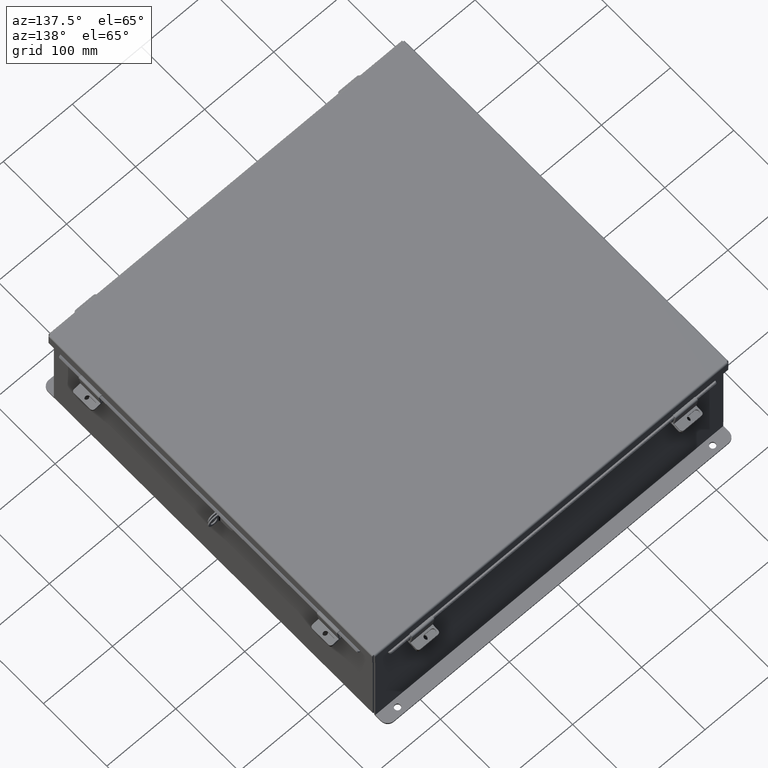
[diagram: clean part render]
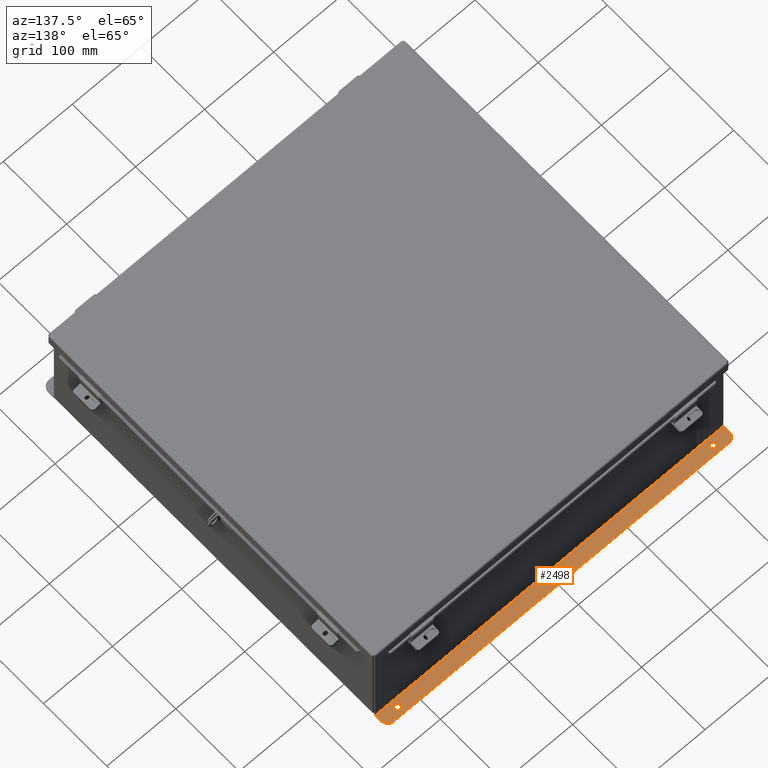
[diagram: same view with one face highlighted and labeled with its STEP entity id]
A machine part, auxiliary view. The second image highlights one B-rep face of the part: STEP entity #2498.
In plain terms, the highlighted planar face has unit normal (0, 0, 1).
Its self-contained STEP definition (entity closure, byte-faithful):
#204 = CARTESIAN_POINT ( 'NONE',  ( -9.925299999999996500, 0.01300000000000010700, -3.112299999999999800 ) ) ;
#269 = EDGE_CURVE ( 'NONE', #2657, #15982, #9549, .T. ) ;
#323 = VECTOR ( 'NONE', #8133, 39.37007874015748100 ) ;
#348 = CARTESIAN_POINT ( 'NONE',  ( 9.550300000000001800, 0.7378000000000011200, -3.112300000000003000 ) ) ;
#474 = CIRCLE ( 'NONE', #19232, 0.3750000000000000600 ) ;
#612 = CIRCLE ( 'NONE', #15362, 0.1560000000000001700 ) ;
#615 = ORIENTED_EDGE ( 'NONE', *, *, #20021, .F. ) ;
#617 = CARTESIAN_POINT ( 'NONE',  ( 9.550300000000001800, 0.3628000000000008400, -3.112300000000001200 ) ) ;
#642 = DIRECTION ( 'NONE',  ( 0.0000000000000000000, -1.000000000000000000, 3.502369222646487400E-015 ) ) ;
#669 = VERTEX_POINT ( 'NONE', #204 ) ;
#719 = DIRECTION ( 'NONE',  ( -0.0000000000000000000, 1.000000000000000000, -3.702694488566362300E-015 ) ) ;
#962 = DIRECTION ( 'NONE',  ( -0.0000000000000000000, -3.702694488566362300E-015, -1.000000000000000000 ) ) ;
#1343 = EDGE_LOOP ( 'NONE', ( #9283, #7933, #615, #2028, #11924, #3352 ) ) ;
#1504 = CARTESIAN_POINT ( 'NONE',  ( 9.925300000000001800, 0.01300000000000010700, -3.112299999999999800 ) ) ;
#2028 = ORIENTED_EDGE ( 'NONE', *, *, #20942, .T. ) ;
#2074 = VERTEX_POINT ( 'NONE', #7505 ) ;
#2290 = DIRECTION ( 'NONE',  ( 0.0000000000000000000, -1.000000000000000000, 4.370956789862820400E-015 ) ) ;
#2498 = ADVANCED_FACE ( 'NONE', ( #6497, #5960, #16395 ), #12637, .T. ) ;
#2657 = VERTEX_POINT ( 'NONE', #20598 ) ;
#3352 = ORIENTED_EDGE ( 'NONE', *, *, #17083, .F. ) ;
#3409 = VERTEX_POINT ( 'NONE', #5546 ) ;
#4676 = DIRECTION ( 'NONE',  ( -0.0000000000000000000, -3.702694488566362300E-015, -1.000000000000000000 ) ) ;
#4788 = EDGE_CURVE ( 'NONE', #2074, #11389, #612, .T. ) ;
#5519 = LINE ( 'NONE', #12535, #14793 ) ;
#5546 = CARTESIAN_POINT ( 'NONE',  ( -9.925299999999998200, 0.3628000000000008400, -3.112300000000001200 ) ) ;
#5960 = FACE_BOUND ( 'NONE', #7750, .T. ) ;
#6154 = CIRCLE ( 'NONE', #19013, 0.3750000000000000600 ) ;
#6497 = FACE_BOUND ( 'NONE', #10703, .T. ) ;
#6543 = EDGE_CURVE ( 'NONE', #11389, #2074, #15813, .T. ) ;
#6938 = AXIS2_PLACEMENT_3D ( 'NONE', #20576, #19251, #12392 ) ;
#6949 = CARTESIAN_POINT ( 'NONE',  ( 9.925300000000001800, 0.7378000000000011200, -3.112300000000003000 ) ) ;
#7505 = CARTESIAN_POINT ( 'NONE',  ( -8.987799999999994700, 0.5188000000000010400, -3.112300000000001600 ) ) ;
#7750 = EDGE_LOOP ( 'NONE', ( #22327, #10845 ) ) ;
#7933 = ORIENTED_EDGE ( 'NONE', *, *, #20770, .T. ) ;
#8070 = VECTOR ( 'NONE', #19335, 39.37007874015748100 ) ;
#8133 = DIRECTION ( 'NONE',  ( -1.000000000000000000, 0.0000000000000000000, 0.0000000000000000000 ) ) ;
#8592 = DIRECTION ( 'NONE',  ( -0.0000000000000000000, -3.702694488566362300E-015, -1.000000000000000000 ) ) ;
#8642 = DIRECTION ( 'NONE',  ( 0.0000000000000000000, -1.000000000000000000, 3.502369222646487400E-015 ) ) ;
#9283 = ORIENTED_EDGE ( 'NONE', *, *, #16537, .F. ) ;
#9334 = CARTESIAN_POINT ( 'NONE',  ( -9.550299999999998200, 0.3628000000000008400, -3.112300000000001200 ) ) ;
#9549 = CIRCLE ( 'NONE', #12704, 0.1560000000000001700 ) ;
#10348 = AXIS2_PLACEMENT_3D ( 'NONE', #21869, #4676, #20503 ) ;
#10703 = EDGE_LOOP ( 'NONE', ( #19297, #20689 ) ) ;
#10711 = VERTEX_POINT ( 'NONE', #1504 ) ;
#10720 = AXIS2_PLACEMENT_3D ( 'NONE', #11006, #962, #12804 ) ;
#10845 = ORIENTED_EDGE ( 'NONE', *, *, #269, .T. ) ;
#10931 = CARTESIAN_POINT ( 'NONE',  ( -8.987799999999994700, 0.3628000000000008400, -3.112300000000001200 ) ) ;
#11006 = CARTESIAN_POINT ( 'NONE',  ( 8.987800000000001800, 0.3628000000000008400, -3.112300000000001200 ) ) ;
#11066 = CARTESIAN_POINT ( 'NONE',  ( -8.987799999999994700, 0.2068000000000006800, -3.112300000000000700 ) ) ;
#11084 = DIRECTION ( 'NONE',  ( 0.0000000000000000000, -1.000000000000000000, 4.370956789862820400E-015 ) ) ;
#11389 = VERTEX_POINT ( 'NONE', #11066 ) ;
#11924 = ORIENTED_EDGE ( 'NONE', *, *, #16211, .F. ) ;
#12392 = DIRECTION ( 'NONE',  ( 0.0000000000000000000, -1.000000000000000000, 3.702694488566362300E-015 ) ) ;
#12427 = DIRECTION ( 'NONE',  ( 0.0000000000000000000, 3.702694488566362300E-015, 1.000000000000000000 ) ) ;
#12535 = CARTESIAN_POINT ( 'NONE',  ( -9.925299999999998200, 0.7378000000000011200, -3.112300000000003000 ) ) ;
#12637 = PLANE ( 'NONE',  #6938 ) ;
#12674 = LINE ( 'NONE', #6949, #8070 ) ;
#12704 = AXIS2_PLACEMENT_3D ( 'NONE', #15624, #8592, #8642 ) ;
#12780 = LINE ( 'NONE', #20657, #21715 ) ;
#12804 = DIRECTION ( 'NONE',  ( 0.0000000000000000000, -1.000000000000000000, 3.502369222646487400E-015 ) ) ;
#13201 = CARTESIAN_POINT ( 'NONE',  ( -9.550299999999998200, 0.7378000000000011200, -3.112300000000003000 ) ) ;
#13868 = CARTESIAN_POINT ( 'NONE',  ( 9.925300000000001800, 0.3628000000000008400, -3.112300000000001200 ) ) ;
#13935 = LINE ( 'NONE', #20433, #323 ) ;
#14793 = VECTOR ( 'NONE', #719, 39.37007874015748100 ) ;
#15362 = AXIS2_PLACEMENT_3D ( 'NONE', #10931, #19237, #642 ) ;
#15624 = CARTESIAN_POINT ( 'NONE',  ( 8.987800000000001800, 0.3628000000000008400, -3.112300000000001200 ) ) ;
#15813 = CIRCLE ( 'NONE', #10348, 0.1560000000000001700 ) ;
#15875 = CIRCLE ( 'NONE', #10720, 0.1560000000000001700 ) ;
#15982 = VERTEX_POINT ( 'NONE', #20768 ) ;
#16075 = VERTEX_POINT ( 'NONE', #348 ) ;
#16211 = EDGE_CURVE ( 'NONE', #669, #3409, #5519, .T. ) ;
#16395 = FACE_OUTER_BOUND ( 'NONE', #1343, .T. ) ;
#16537 = EDGE_CURVE ( 'NONE', #19340, #10711, #12780, .T. ) ;
#17083 = EDGE_CURVE ( 'NONE', #10711, #669, #13935, .T. ) ;
#17941 = EDGE_CURVE ( 'NONE', #15982, #2657, #15875, .T. ) ;
#18133 = VERTEX_POINT ( 'NONE', #13201 ) ;
#19013 = AXIS2_PLACEMENT_3D ( 'NONE', #9334, #21769, #11084 ) ;
#19232 = AXIS2_PLACEMENT_3D ( 'NONE', #617, #12427, #2290 ) ;
#19237 = DIRECTION ( 'NONE',  ( -0.0000000000000000000, -3.702694488566362300E-015, -1.000000000000000000 ) ) ;
#19251 = DIRECTION ( 'NONE',  ( 0.0000000000000000000, 3.702694488566362300E-015, 1.000000000000000000 ) ) ;
#19297 = ORIENTED_EDGE ( 'NONE', *, *, #4788, .T. ) ;
#19335 = DIRECTION ( 'NONE',  ( 1.000000000000000000, -0.0000000000000000000, -0.0000000000000000000 ) ) ;
#19340 = VERTEX_POINT ( 'NONE', #13868 ) ;
#20021 = EDGE_CURVE ( 'NONE', #18133, #16075, #12674, .T. ) ;
#20433 = CARTESIAN_POINT ( 'NONE',  ( 9.925300000000001800, 0.01300000000000010700, -3.112299999999999800 ) ) ;
#20503 = DIRECTION ( 'NONE',  ( 0.0000000000000000000, -1.000000000000000000, 3.502369222646487400E-015 ) ) ;
#20576 = CARTESIAN_POINT ( 'NONE',  ( 0.0000000000000000000, -1.092739197465705300E-014, -3.112299999999999800 ) ) ;
#20598 = CARTESIAN_POINT ( 'NONE',  ( 8.987800000000001800, 0.2068000000000006800, -3.112300000000000700 ) ) ;
#20657 = CARTESIAN_POINT ( 'NONE',  ( 9.925300000000001800, 0.0000000000000000000, -3.112299999999999800 ) ) ;
#20689 = ORIENTED_EDGE ( 'NONE', *, *, #6543, .T. ) ;
#20768 = CARTESIAN_POINT ( 'NONE',  ( 8.987800000000001800, 0.5188000000000010400, -3.112300000000001600 ) ) ;
#20770 = EDGE_CURVE ( 'NONE', #19340, #16075, #474, .T. ) ;
#20942 = EDGE_CURVE ( 'NONE', #18133, #3409, #6154, .T. ) ;
#21715 = VECTOR ( 'NONE', #22434, 39.37007874015748100 ) ;
#21769 = DIRECTION ( 'NONE',  ( 0.0000000000000000000, 3.702694488566362300E-015, 1.000000000000000000 ) ) ;
#21869 = CARTESIAN_POINT ( 'NONE',  ( -8.987799999999994700, 0.3628000000000008400, -3.112300000000001200 ) ) ;
#22327 = ORIENTED_EDGE ( 'NONE', *, *, #17941, .T. ) ;
#22434 = DIRECTION ( 'NONE',  ( -0.0000000000000000000, -1.000000000000000000, 3.702694488566362300E-015 ) ) ;